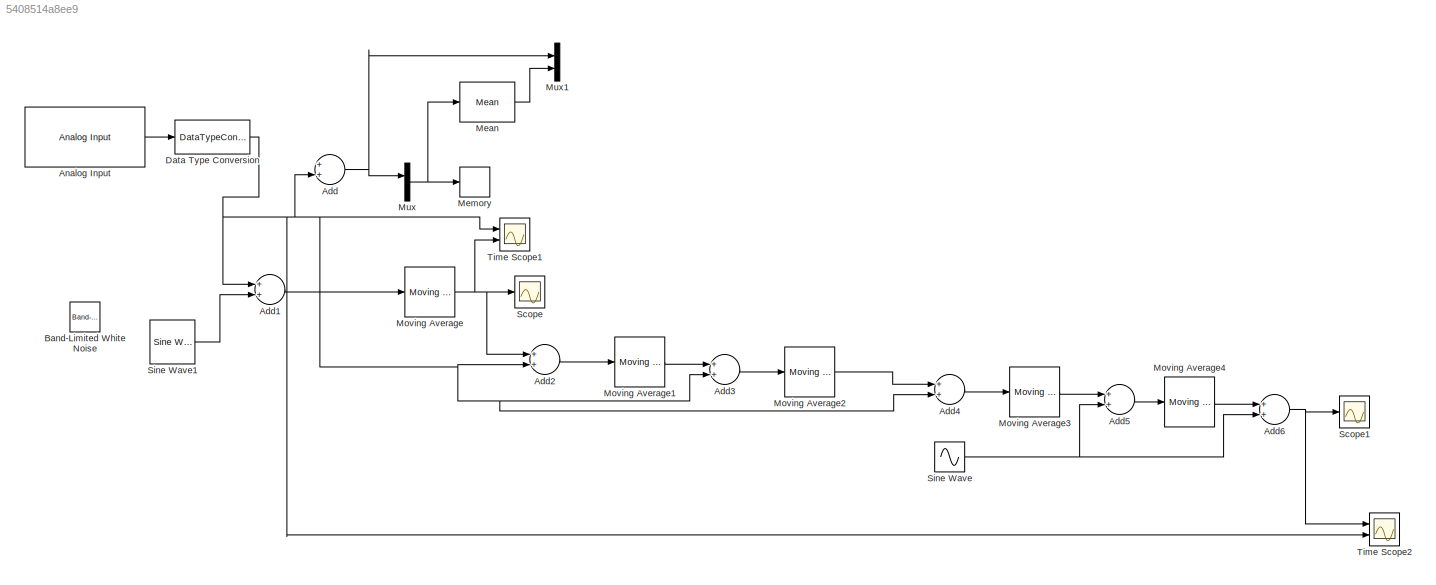
MODEL slx_5408514a8ee9
KIND model
CONFIG AbsTol = auto
CONFIG EnableMultiTasking = on
CONFIG FixedStep = auto
CONFIG MaxStep = auto
CONFIG MinStep = auto
CONFIG RelTol = 1e-3
CONFIG SampleTimeConstraint = Unconstrained
CONFIG Solver = FixedStepAuto
CONFIG SolverName = FixedStepAuto
CONFIG StartTime = 0.0
CONFIG StopTime = inf
BLOCK [Sum] Add
  Commented = on
  InputSameDT = off
  OutDataTypeStr = Inherit: Inherit via internal rule
  Ports = [2, 1]
  SaturateOnIntegerOverflow = off
BLOCK [Sum] Add1
  InputSameDT = off
  OutDataTypeStr = Inherit: Inherit via internal rule
  Ports = [2, 1]
  SaturateOnIntegerOverflow = off
BLOCK [Sum] Add2
  InputSameDT = off
  OutDataTypeStr = Inherit: Inherit via internal rule
  Ports = [2, 1]
  SaturateOnIntegerOverflow = off
BLOCK [Sum] Add3
  InputSameDT = off
  OutDataTypeStr = Inherit: Inherit via internal rule
  Ports = [2, 1]
  SaturateOnIntegerOverflow = off
BLOCK [Sum] Add4
  InputSameDT = off
  OutDataTypeStr = Inherit: Inherit via internal rule
  Ports = [2, 1]
  SaturateOnIntegerOverflow = off
BLOCK [Sum] Add5
  InputSameDT = off
  OutDataTypeStr = Inherit: Inherit via internal rule
  Ports = [2, 1]
  SaturateOnIntegerOverflow = off
BLOCK [Sum] Add6
  InputSameDT = off
  OutDataTypeStr = Inherit: Inherit via internal rule
  Ports = [2, 1]
  SaturateOnIntegerOverflow = off
BLOCK [Reference] Analog Input  REF=arduinolib/Analog Input
  Ports = [0, 1]
  SourceBlock = arduinolib/Analog Input
  SourceProductBaseCode = ARDUINO
  SourceProductName = Simulink Support Package for Arduino Hardware
  SourceType = Arduino Analog Input
BLOCK [Reference] Band-Limited White Noise  REF=simulink/Sources/Band-Limited
White Noise
  Commented = on
  Ports = [0, 1]
  SourceBlock = simulink/Sources/Band-Limited\nWhite Noise
  SourceProductBaseCode = SL
  SourceProductName = Simulink
  SourceType = Band-Limited White Noise.
BLOCK [DataTypeConversion] Data Type Conversion
  RndMeth = Floor
  SaturateOnIntegerOverflow = off
BLOCK [Reference] Mean  REF=dspstat3/Mean
  Commented = on
  Ports = [1, 1]
  SourceBlock = dspstat3/Mean
  SourceProductBaseCode = DS
  SourceProductName = DSP System Toolbox
  SourceType = Mean
  UserDataPersistent = on
BLOCK [Memory] Memory
  Commented = on
BLOCK [Reference] Moving Average  REF=dspstat3/Moving
Average
  Ports = [1, 1]
  SourceBlock = dspstat3/Moving\nAverage
  SourceProductBaseCode = DS
  SourceProductName = DSP System Toolbox
  SourceType = dsp.simulink.MovingAverage
BLOCK [Reference] Moving Average1  REF=dspstat3/Moving
Average
  Ports = [1, 1]
  SourceBlock = dspstat3/Moving\nAverage
  SourceProductBaseCode = DS
  SourceProductName = DSP System Toolbox
  SourceType = dsp.simulink.MovingAverage
BLOCK [Reference] Moving Average2  REF=dspstat3/Moving
Average
  Ports = [1, 1]
  SourceBlock = dspstat3/Moving\nAverage
  SourceProductBaseCode = DS
  SourceProductName = DSP System Toolbox
  SourceType = dsp.simulink.MovingAverage
BLOCK [Reference] Moving Average3  REF=dspstat3/Moving
Average
  Ports = [1, 1]
  SourceBlock = dspstat3/Moving\nAverage
  SourceProductBaseCode = DS
  SourceProductName = DSP System Toolbox
  SourceType = dsp.simulink.MovingAverage
BLOCK [Reference] Moving Average4  REF=dspstat3/Moving
Average
  Ports = [1, 1]
  SourceBlock = dspstat3/Moving\nAverage
  SourceProductBaseCode = DS
  SourceProductName = DSP System Toolbox
  SourceType = dsp.simulink.MovingAverage
BLOCK [Mux] Mux
  Commented = on
  DisplayOption = bar
  Inputs = 2
  Ports = [2, 1]
BLOCK [Mux] Mux1
  Commented = on
  DisplayOption = bar
  Inputs = 2
  Ports = [2, 1]
BLOCK [Scope] Scope
  Floating = off
  NumInputPorts = 1
  Ports = [1]
  ScopeSpecificationString = Simulink.scopes.TimeScopeBlockCfg('CurrentConfiguration', extmgr.ConfigurationSet(extmgr.Configuration('Core','General UI',true),extmgr.Configuration('Core','Source UI',true),extmgr.Configuration('Sources','WiredSimulink',true),extmgr.Configuration('Visuals','Time Domain',true,'SerializedDisplays',{struct('MinYLimReal','23.92411','MaxYLimReal','103.49429','YLabelReal','','MinYLimMag','23.92411','M...<+1416ch>
BLOCK [Scope] Scope1
  Floating = off
  NumInputPorts = 1
  Ports = [1]
  ScopeSpecificationString = Simulink.scopes.TimeScopeBlockCfg('CurrentConfiguration', extmgr.ConfigurationSet(extmgr.Configuration('Core','General UI',true),extmgr.Configuration('Core','Source UI',true),extmgr.Configuration('Sources','WiredSimulink',true,'DataLoggingVariableName','ScopeData1'),extmgr.Configuration('Visuals','Time Domain',true,'SerializedDisplays',{struct('MinYLimReal','276.88721','MaxYLimReal','380.36246','Y...<+1522ch>
BLOCK [Sin] Sine Wave
  Ports = [0, 1]
  SampleTime = 0
BLOCK [Reference] Sine Wave1  REF=dspsrcs4/Sine Wave
  Ports = [0, 1]
  SourceBlock = dspsrcs4/Sine Wave
  SourceProductBaseCode = DS
  SourceProductName = DSP System Toolbox
  SourceType = Sine Wave
BLOCK [Scope] Time Scope1
  DefaultConfigurationName = spbscopes.TimeScopeBlockCfg
  Floating = off
  NumInputPorts = 2
  Ports = [2]
  ScopeSpecificationString = spbscopes.TimeScopeBlockCfg('CurrentConfiguration', extmgr.ConfigurationSet(extmgr.Configuration('Core','General UI',true),extmgr.Configuration('Core','Source UI',true),extmgr.Configuration('Sources','WiredSimulink',true,'DataLoggingVariableName','ScopeData2'),extmgr.Configuration('Visuals','Time Domain',true,'DisplayPropertyDefaults',struct('MinYLimReal','68.00000','MaxYLimReal','98.00000','YLabe...<+1497ch>
  UserDataPersistent = on
BLOCK [Scope] Time Scope2
  DefaultConfigurationName = spbscopes.TimeScopeBlockCfg
  Floating = off
  NumInputPorts = 2
  Ports = [2]
  ScopeSpecificationString = spbscopes.TimeScopeBlockCfg('CurrentConfiguration', extmgr.ConfigurationSet(extmgr.Configuration('Core','General UI',true),extmgr.Configuration('Core','Source UI',true),extmgr.Configuration('Sources','WiredSimulink',true,'DataLoggingVariableName','ScopeData4'),extmgr.Configuration('Visuals','Time Domain',true,'DisplayPropertyDefaults',struct('MinYLimReal','70.81826','MaxYLimReal','572.63564','YLab...<+1443ch>
  UserDataPersistent = on
LINE Add1:1 -> Moving Average:1
LINE Add2:1 -> Moving Average1:1
LINE Add3:1 -> Moving Average2:1
LINE Add4:1 -> Moving Average3:1
LINE Add5:1 -> Moving Average4:1
NET Add6:1 -> Scope1:1, Time Scope2:1
NET Add:1 -> Mux1:1, Mux:1
LINE Analog Input:1 -> Data Type Conversion:1
NET Data Type Conversion:1 -> Add1:1, Add2:2, Add3:2, Add4:2, Add:2, Time Scope1:1, Time Scope2:2
LINE Mean:1 -> Mux1:2
LINE Moving Average1:1 -> Add3:1
LINE Moving Average2:1 -> Add4:1
LINE Moving Average3:1 -> Add5:1
LINE Moving Average4:1 -> Add6:1
NET Moving Average:1 -> Add2:1, Scope:1, Time Scope1:2
NET Mux:1 -> Mean:1, Memory:1
LINE Sine Wave1:1 -> Add1:2
NET Sine Wave:1 -> Add5:2, Add6:2
note: NET lines group one-source signal fan-out (src -> all destinations, sorted); 1:1 wires keep LINE
